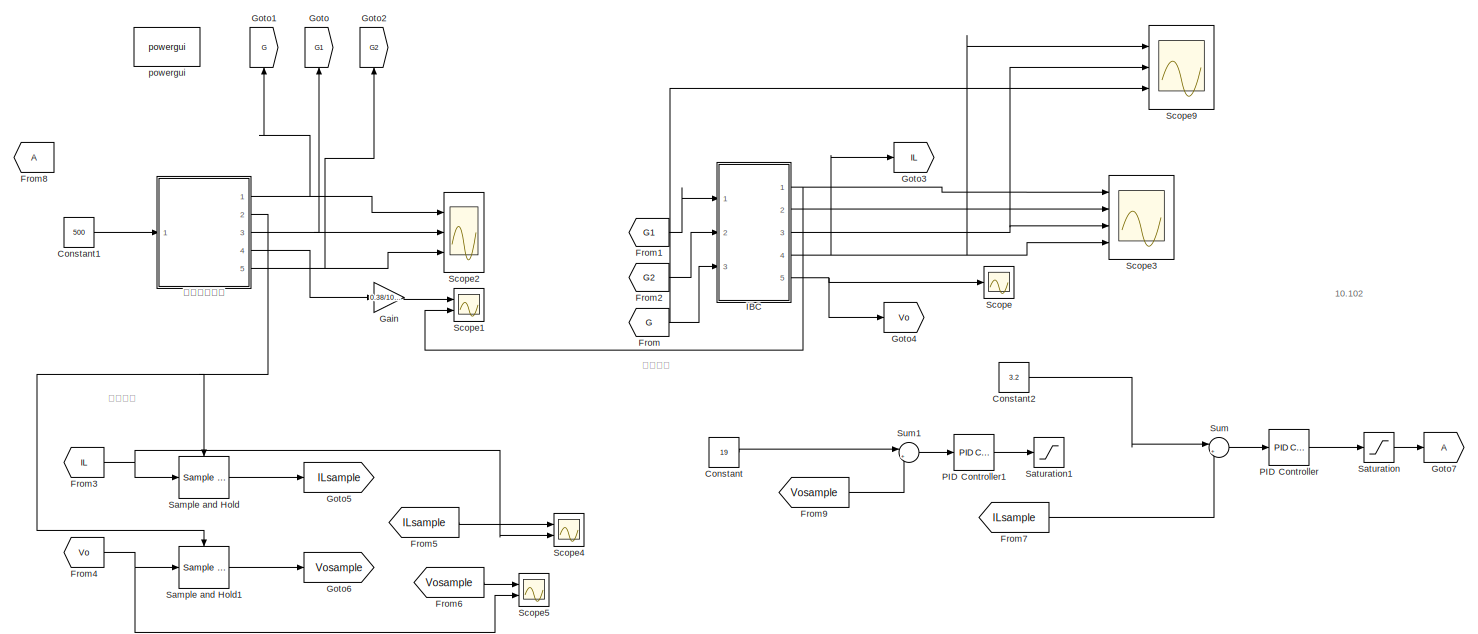
[diagram: root canvas - part 1/3, top center region]
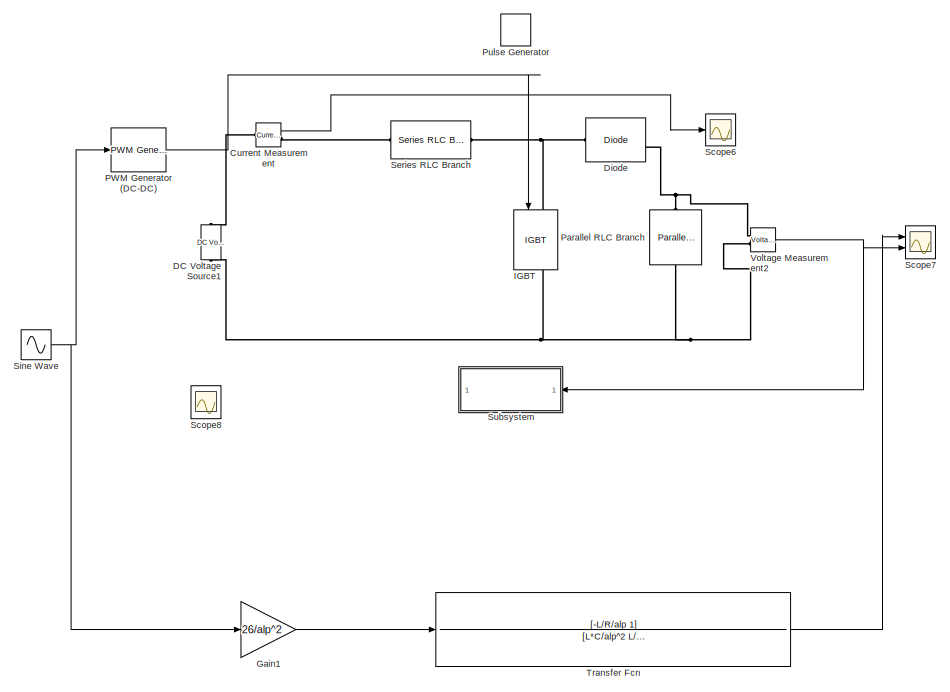
[diagram: root canvas - part 2/3, bottom left region]
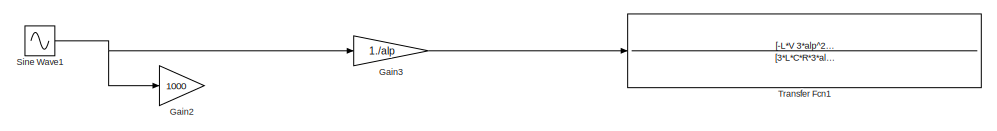
[diagram: root canvas - part 3/3, bottom right region]
MODEL slx_bc60dcd31ce7
KIND model
CONFIG AbsTol = auto
CONFIG EnableMultiTasking = off
CONFIG FixedStep = auto
CONFIG InitFcn = R=10;\nC=80e-6;\nL=2000e-6;\nalp=1-0.5;\nV=26;
CONFIG MaxStep = auto
CONFIG MinStep = auto
CONFIG RelTol = 1e-3
CONFIG SampleTimeConstraint = Unconstrained
CONFIG SolverName = VariableStepAuto
CONFIG StartTime = 0.0
CONFIG StopTime = 0.01
BLOCK [Constant] Constant
  Value = 19
BLOCK [Constant] Constant1
  Value = 500
BLOCK [Constant] Constant2
  Value = 3.2
BLOCK [Reference] Current Measurement  REF=spsCurrentMeasurementLib/Current Measurement
  Commented = on
  Ports = [0, 1, 0, 0, 0, 1, 1]
  SourceBlock = spsCurrentMeasurementLib/Current Measurement
  SourceProductBaseCode = PS
  SourceType = Current Measurement
  UserDataPersistent = on
BLOCK [Reference] DC Voltage Source1  REF=spsDCVoltageSourceLib/DC Voltage Source
  Commented = on
  NameLocation = right
  Ports = [0, 0, 0, 0, 0, 1, 1]
  SourceBlock = spsDCVoltageSourceLib/DC Voltage Source
  SourceProductBaseCode = PS
  SourceType = DC Voltage Source
BLOCK [Reference] Diode  REF=spsDiodeLib/Diode
  Commented = on
  Ports = [0, 1, 0, 0, 0, 1, 1]
  SourceBlock = spsDiodeLib/Diode
  SourceProductBaseCode = PS
  SourceType = Diode
BLOCK [From] From
  GotoTag = G
BLOCK [From] From1
  GotoTag = G1
BLOCK [From] From2
  GotoTag = G2
BLOCK [From] From3
  GotoTag = IL
BLOCK [From] From4
  GotoTag = Vo
BLOCK [From] From5
  GotoTag = ILsample
BLOCK [From] From6
  GotoTag = Vosample
BLOCK [From] From7
  GotoTag = ILsample
BLOCK [From] From8
BLOCK [From] From9
  GotoTag = Vosample
BLOCK [Gain] Gain
  Gain = 0.38/1000
BLOCK [Gain] Gain1
  Commented = on
  Gain = 26/alp^2
BLOCK [Gain] Gain2
  Commented = on
  Gain = 1000
BLOCK [Gain] Gain3
  Commented = on
  Gain = 1./alp
BLOCK [Goto] Goto
  GotoTag = G1
  NameLocation = right
BLOCK [Goto] Goto1
  GotoTag = G
  NameLocation = right
BLOCK [Goto] Goto2
  GotoTag = G2
  NameLocation = right
BLOCK [Goto] Goto3
  GotoTag = IL
BLOCK [Goto] Goto4
  GotoTag = Vo
BLOCK [Goto] Goto5
  GotoTag = ILsample
BLOCK [Goto] Goto6
  GotoTag = Vosample
BLOCK [Goto] Goto7
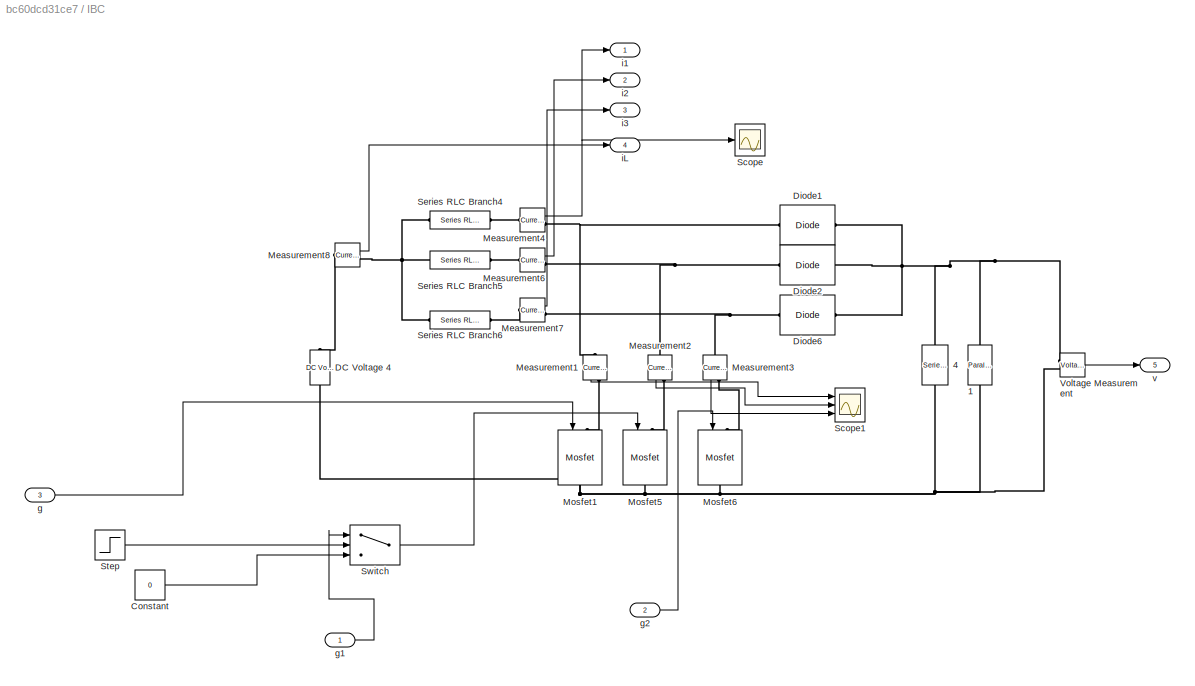
BLOCK [SubSystem] IBC
  Ports = [3, 5]
  RequestExecContextInheritance = off
BLOCK [Reference] IBC/    4  REF=spsSeriesRLCBranchLib/Series RLC Branch
  NameLocation = left
  Ports = [0, 0, 0, 0, 0, 1, 1]
  SourceBlock = spsSeriesRLCBranchLib/Series RLC Branch
  SourceProductBaseCode = PS
  SourceType = Series RLC Branch
BLOCK [Reference] IBC/  1  REF=spsParallelRLCBranchLib/Parallel RLC Branch
  AttributesFormatString = \n
  NameLocation = left
  Ports = [0, 0, 0, 0, 0, 1, 1]
  SourceBlock = spsParallelRLCBranchLib/Parallel RLC Branch
  SourceProductBaseCode = PS
  SourceType = Parallel RLC Branch
BLOCK [Reference] IBC/ Measurement1  REF=spsCurrentMeasurementLib/Current Measurement
  NameLocation = left
  Ports = [0, 1, 0, 0, 0, 1, 1]
  SourceBlock = spsCurrentMeasurementLib/Current Measurement
  SourceProductBaseCode = PS
  SourceType = Current Measurement
BLOCK [Reference] IBC/ Measurement2  REF=spsCurrentMeasurementLib/Current Measurement
  NameLocation = left
  Ports = [0, 1, 0, 0, 0, 1, 1]
  SourceBlock = spsCurrentMeasurementLib/Current Measurement
  SourceProductBaseCode = PS
  SourceType = Current Measurement
BLOCK [Reference] IBC/ Measurement3  REF=spsCurrentMeasurementLib/Current Measurement
  NameLocation = left
  Ports = [0, 1, 0, 0, 0, 1, 1]
  SourceBlock = spsCurrentMeasurementLib/Current Measurement
  SourceProductBaseCode = PS
  SourceType = Current Measurement
BLOCK [Reference] IBC/ Measurement4  REF=spsCurrentMeasurementLib/Current Measurement
  Ports = [0, 1, 0, 0, 0, 1, 1]
  SourceBlock = spsCurrentMeasurementLib/Current Measurement
  SourceProductBaseCode = PS
  SourceType = Current Measurement
BLOCK [Reference] IBC/ Measurement6  REF=spsCurrentMeasurementLib/Current Measurement
  Ports = [0, 1, 0, 0, 0, 1, 1]
  SourceBlock = spsCurrentMeasurementLib/Current Measurement
  SourceProductBaseCode = PS
  SourceType = Current Measurement
BLOCK [Reference] IBC/ Measurement7  REF=spsCurrentMeasurementLib/Current Measurement
  Ports = [0, 1, 0, 0, 0, 1, 1]
  SourceBlock = spsCurrentMeasurementLib/Current Measurement
  SourceProductBaseCode = PS
  SourceType = Current Measurement
BLOCK [Reference] IBC/ Measurement8  REF=spsCurrentMeasurementLib/Current Measurement
  Ports = [0, 1, 0, 0, 0, 1, 1]
  SourceBlock = spsCurrentMeasurementLib/Current Measurement
  SourceProductBaseCode = PS
  SourceType = Current Measurement
BLOCK [Constant] IBC/Constant
  Value = 0
BLOCK [Reference] IBC/DC Voltage 4  REF=spsDCVoltageSourceLib/DC Voltage Source
  NameLocation = right
  Ports = [0, 0, 0, 0, 0, 1, 1]
  SourceBlock = spsDCVoltageSourceLib/DC Voltage Source
  SourceProductBaseCode = PS
  SourceType = DC Voltage Source
BLOCK [Reference] IBC/Diode1  REF=spsDiodeLib/Diode
  Ports = [0, 0, 0, 0, 0, 1, 1]
  SourceBlock = spsDiodeLib/Diode
  SourceProductBaseCode = PS
  SourceType = Diode
BLOCK [Reference] IBC/Diode2  REF=spsDiodeLib/Diode
  Ports = [0, 0, 0, 0, 0, 1, 1]
  SourceBlock = spsDiodeLib/Diode
  SourceProductBaseCode = PS
  SourceType = Diode
BLOCK [Reference] IBC/Diode6  REF=spsDiodeLib/Diode
  Ports = [0, 0, 0, 0, 0, 1, 1]
  SourceBlock = spsDiodeLib/Diode
  SourceProductBaseCode = PS
  SourceType = Diode
BLOCK [Reference] IBC/Mosfet1  REF=spsMosfetLib/Mosfet
  NameLocation = left
  Ports = [1, 0, 0, 0, 0, 1, 1]
  SourceBlock = spsMosfetLib/Mosfet
  SourceProductBaseCode = PS
  SourceType = Mosfet
BLOCK [Reference] IBC/Mosfet5  REF=spsMosfetLib/Mosfet
  NameLocation = left
  Ports = [1, 0, 0, 0, 0, 1, 1]
  SourceBlock = spsMosfetLib/Mosfet
  SourceProductBaseCode = PS
  SourceType = Mosfet
BLOCK [Reference] IBC/Mosfet6  REF=spsMosfetLib/Mosfet
  NameLocation = left
  Ports = [1, 0, 0, 0, 0, 1, 1]
  SourceBlock = spsMosfetLib/Mosfet
  SourceProductBaseCode = PS
  SourceType = Mosfet
BLOCK [Scope] IBC/Scope
  Floating = off
  NumInputPorts = 1
  Ports = [1]
  ScopeSpecificationString = Simulink.scopes.TimeScopeBlockCfg('CurrentConfiguration', extmgr.ConfigurationSet(extmgr.Configuration('Core','General UI',true),extmgr.Configuration('Core','Source UI',true),extmgr.Configuration('Sources','WiredSimulink',true,'DataLoggingVariableName','ScopeData1'),extmgr.Configuration('Visuals','Time Domain',true,'SerializedDisplays',{struct('MinYLimReal','-0.04996','MaxYLimReal','0.45188','YLab...<+1372ch>
BLOCK [Scope] IBC/Scope1
  Floating = off
  NumInputPorts = 3
  Ports = [3]
  ScopeSpecificationString = Simulink.scopes.TimeScopeBlockCfg('CurrentConfiguration', extmgr.ConfigurationSet(extmgr.Configuration('Core','General UI',true),extmgr.Configuration('Core','Source UI',true),extmgr.Configuration('Sources','WiredSimulink',true,'DataLoggingVariableName','ScopeData1'),extmgr.Configuration('Visuals','Time Domain',true,'SerializedDisplays',{struct('MinYLimReal','-0.05517','MaxYLimReal','0.4966','YLabe...<+2873ch>
BLOCK [Reference] IBC/Series RLC Branch4  REF=spsSeriesRLCBranchLib/Series RLC Branch
  Ports = [0, 0, 0, 0, 0, 1, 1]
  SourceBlock = spsSeriesRLCBranchLib/Series RLC Branch
  SourceProductBaseCode = PS
  SourceType = Series RLC Branch
BLOCK [Reference] IBC/Series RLC Branch5  REF=spsSeriesRLCBranchLib/Series RLC Branch
  Ports = [0, 0, 0, 0, 0, 1, 1]
  SourceBlock = spsSeriesRLCBranchLib/Series RLC Branch
  SourceProductBaseCode = PS
  SourceType = Series RLC Branch
BLOCK [Reference] IBC/Series RLC Branch6  REF=spsSeriesRLCBranchLib/Series RLC Branch
  Ports = [0, 0, 0, 0, 0, 1, 1]
  SourceBlock = spsSeriesRLCBranchLib/Series RLC Branch
  SourceProductBaseCode = PS
  SourceType = Series RLC Branch
BLOCK [Step] IBC/Step
  After = 0
  Before = 1
  SampleTime = 0
  Time = 0.008
BLOCK [Switch] IBC/Switch
  Criteria = u2 > Threshold
  InputSameDT = off
  SaturateOnIntegerOverflow = off
  Threshold = 0.5
BLOCK [Reference] IBC/Voltage Measurement  REF=spsVoltageMeasurementLib/Voltage Measurement
  Ports = [0, 1, 0, 0, 0, 2]
  SourceBlock = spsVoltageMeasurementLib/Voltage Measurement
  SourceProductBaseCode = PS
  SourceType = Voltage Measurement
  UserDataPersistent = on
BLOCK [Inport] IBC/g
  Port = 3
BLOCK [Inport] IBC/g1
BLOCK [Inport] IBC/g2
  Port = 2
BLOCK [Outport] IBC/i1
BLOCK [Outport] IBC/i2
  Port = 2
BLOCK [Outport] IBC/i3
  Port = 3
BLOCK [Outport] IBC/iL
  Port = 4
BLOCK [Outport] IBC/v
  Port = 5
BLOCK [Reference] IGBT  REF=spsIGBTLib/IGBT
  Commented = on
  NameLocation = left
  Ports = [1, 1, 0, 0, 0, 1, 1]
  SourceBlock = spsIGBTLib/IGBT
  SourceProductBaseCode = PS
  SourceType = IGBT
BLOCK [Reference] PID Controller  REF=pid_lib/PID Controller
  Ports = [1, 1]
  SourceBlock = pid_lib/PID Controller
  SourceProductBaseCode = SL
  SourceType = PID 1dof
BLOCK [Reference] PID Controller1  REF=pid_lib/PID Controller
  Ports = [1, 1]
  SourceBlock = pid_lib/PID Controller
  SourceProductBaseCode = SL
  SourceType = PID 1dof
BLOCK [Reference] PWM Generator (DC-DC)  REF=spsPWMGeneratorDCDCLib/PWM Generator
(DC-DC)
  Commented = on
  Ports = [1, 1]
  SourceBlock = spsPWMGeneratorDCDCLib/PWM Generator\n(DC-DC)
  SourceProductBaseCode = PS
  SourceType = PWM Generator (DC-DC)
BLOCK [Reference] Parallel RLC Branch  REF=spsParallelRLCBranchLib/Parallel RLC Branch
  AttributesFormatString = \n
  Commented = on
  NameLocation = left
  Ports = [0, 0, 0, 0, 0, 1, 1]
  SourceBlock = spsParallelRLCBranchLib/Parallel RLC Branch
  SourceProductBaseCode = PS
  SourceType = Parallel RLC Branch
BLOCK [DiscretePulseGenerator] Pulse Generator
  Amplitude = 10
  Commented = on
  Period = 1./(100e3)
  Ports = [0, 1]
  PulseType = Time based
  PulseWidth = 50
BLOCK [Reference] Sample and Hold  REF=dspsigops/Sample
and Hold
  Ports = [1, 1, 0, 1]
  SourceBlock = dspsigops/Sample\nand Hold
  SourceProductBaseCode = DS
  SourceType = Sample and Hold
BLOCK [Reference] Sample and Hold1  REF=dspsigops/Sample
and Hold
  Ports = [1, 1, 0, 1]
  SourceBlock = dspsigops/Sample\nand Hold
  SourceProductBaseCode = DS
  SourceType = Sample and Hold
BLOCK [Saturate] Saturation
  LowerLimit = 100
  UpperLimit = 900
BLOCK [Saturate] Saturation1
  LowerLimit = 0
  UpperLimit = 5
BLOCK [Scope] Scope
  Floating = off
  NumInputPorts = 1
  Ports = [1]
  ScopeSpecificationString = Simulink.scopes.TimeScopeBlockCfg('CurrentConfiguration', extmgr.ConfigurationSet(extmgr.Configuration('Core','General UI',true),extmgr.Configuration('Core','Source UI',true),extmgr.Configuration('Sources','WiredSimulink',true,'DataLoggingVariableName','ScopeData1'),extmgr.Configuration('Visuals','Time Domain',true,'SerializedDisplays',{struct('MinYLimReal','-1.84514','MaxYLimReal','16.60629','YLa...<+1437ch>
BLOCK [Scope] Scope1
  Floating = off
  NumInputPorts = 2
  Ports = [2]
  ScopeSpecificationString = Simulink.scopes.TimeScopeBlockCfg('CurrentConfiguration', extmgr.ConfigurationSet(extmgr.Configuration('Core','General UI',true),extmgr.Configuration('Core','Source UI',true),extmgr.Configuration('Sources','WiredSimulink',true,'DataLoggingVariableName','ScopeData1'),extmgr.Configuration('Visuals','Time Domain',true,'SerializedDisplays',{struct('MinYLimReal','-0.04268','MaxYLimReal','0.3841','YLabe...<+1576ch>
BLOCK [Scope] Scope2
  Floating = off
  NumInputPorts = 3
  Ports = [3]
  ScopeSpecificationString = Simulink.scopes.TimeScopeBlockCfg('CurrentConfiguration', extmgr.ConfigurationSet(extmgr.Configuration('Core','General UI',true),extmgr.Configuration('Core','Source UI',true),extmgr.Configuration('Sources','WiredSimulink',true,'DataLoggingVariableName','ScopeData1'),extmgr.Configuration('Visuals','Time Domain',true,'SerializedDisplays',{struct('MinYLimReal','-0.125','MaxYLimReal','1.125','YLabelRe...<+3140ch>
BLOCK [Scope] Scope3
  Floating = off
  NumInputPorts = 4
  Ports = [4]
  ScopeSpecificationString = Simulink.scopes.TimeScopeBlockCfg('CurrentConfiguration', extmgr.ConfigurationSet(extmgr.Configuration('Core','General UI',true,'FigureColor',[1 1 1]),extmgr.Configuration('Core','Source UI',true),extmgr.Configuration('Sources','WiredSimulink',true,'DataLoggingVariableName','Io','DataLogging',true),extmgr.Configuration('Visuals','Time Domain',true,'TimeAxisLabels','All','SerializedDisplays',{struc...<+2351ch>
BLOCK [Scope] Scope4
  Floating = off
  NumInputPorts = 2
  Ports = [2]
  ScopeSpecificationString = Simulink.scopes.TimeScopeBlockCfg('CurrentConfiguration', extmgr.ConfigurationSet(extmgr.Configuration('Core','General UI',true),extmgr.Configuration('Core','Source UI',true),extmgr.Configuration('Sources','WiredSimulink',true,'DataLoggingVariableName','ScopeData2'),extmgr.Configuration('Visuals','Time Domain',true,'SerializedDisplays',{struct('MinYLimReal','-0.01019','MaxYLimReal','0.0917','YLabe...<+1495ch>
BLOCK [Scope] Scope5
  Floating = off
  NumInputPorts = 2
  Ports = [2]
  ScopeSpecificationString = Simulink.scopes.TimeScopeBlockCfg('CurrentConfiguration', extmgr.ConfigurationSet(extmgr.Configuration('Core','General UI',true),extmgr.Configuration('Core','Source UI',true),extmgr.Configuration('Sources','WiredSimulink',true,'DataLoggingVariableName','ScopeData3'),extmgr.Configuration('Visuals','Time Domain',true,'SerializedDisplays',{struct('MinYLimReal','-1.81226','MaxYLimReal','16.31034','YLa...<+1486ch>
BLOCK [Scope] Scope6
  Commented = on
  Floating = off
  NumInputPorts = 1
  Ports = [1]
  ScopeSpecificationString = Simulink.scopes.TimeScopeBlockCfg('CurrentConfiguration', extmgr.ConfigurationSet(extmgr.Configuration('Core','General UI',true),extmgr.Configuration('Core','Source UI',true),extmgr.Configuration('Sources','WiredSimulink',true,'DataLoggingVariableName','ScopeData1','DataLogging',true,'DataLoggingSaveFormat','StructureWithTime'),extmgr.Configuration('Visuals','Time Domain',true,'SerializedDisplays'...<+1543ch>
BLOCK [Scope] Scope7
  Commented = on
  Floating = off
  NumInputPorts = 2
  Ports = [2]
  ScopeSpecificationString = Simulink.scopes.TimeScopeBlockCfg('CurrentConfiguration', extmgr.ConfigurationSet(extmgr.Configuration('Core','General UI',true),extmgr.Configuration('Core','Source UI',true),extmgr.Configuration('Sources','WiredSimulink',true,'DataLoggingVariableName','ScopeData2','DataLogging',true,'DataLoggingSaveFormat','StructureWithTime'),extmgr.Configuration('Visuals','Time Domain',true,'SerializedDisplays'...<+1680ch>
BLOCK [Scope] Scope8
  Commented = on
  Floating = off
  NumInputPorts = 2
  Ports = [2]
  ScopeSpecificationString = Simulink.scopes.TimeScopeBlockCfg('CurrentConfiguration', extmgr.ConfigurationSet(extmgr.Configuration('Core','General UI',true),extmgr.Configuration('Core','Source UI',true),extmgr.Configuration('Sources','WiredSimulink',true,'DataLoggingVariableName','ScopeData3','DataLogging',true,'DataLoggingSaveFormat','StructureWithTime'),extmgr.Configuration('Visuals','Time Domain',true,'SerializedDisplays'...<+1616ch>
BLOCK [Scope] Scope9
  Floating = off
  NumInputPorts = 3
  Ports = [3]
  ScopeSpecificationString = Simulink.scopes.TimeScopeBlockCfg('CurrentConfiguration', extmgr.ConfigurationSet(extmgr.Configuration('Core','General UI',true,'FigureColor',[1 1 1]),extmgr.Configuration('Core','Source UI',true),extmgr.Configuration('Sources','WiredSimulink',true,'DataLoggingVariableName','ScopeData1','DataLogging',true),extmgr.Configuration('Visuals','Time Domain',true,'TimeAxisLabels','All','SerializedDisplays...<+3906ch>
BLOCK [Reference] Series RLC Branch  REF=spsSeriesRLCBranchLib/Series RLC Branch
  Commented = on
  Ports = [0, 0, 0, 0, 0, 1, 1]
  SourceBlock = spsSeriesRLCBranchLib/Series RLC Branch
  SourceProductBaseCode = PS
  SourceType = Series RLC Branch
BLOCK [Sin] Sine Wave
  Amplitude = 0.01
  Bias = 0.5
  Commented = on
  Frequency = 2*pi*5e3
  Ports = [0, 1]
  SampleTime = 0
BLOCK [Sin] Sine Wave1
  Amplitude = 0.01
  Bias = 0.5
  Commented = on
  Frequency = 2*pi*5e3
  Ports = [0, 1]
  SampleTime = 0
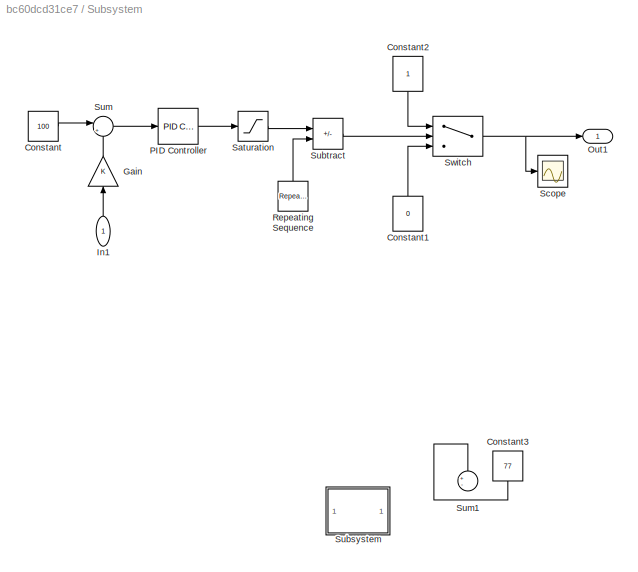
BLOCK [SubSystem] Subsystem
  Commented = on
  NameLocation = top
  Ports = [1, 1]
  RequestExecContextInheritance = off
BLOCK [Constant] Subsystem/Constant
  Value = 100
BLOCK [Constant] Subsystem/Constant1
  NameLocation = right
  Value = 0
BLOCK [Constant] Subsystem/Constant2
  NameLocation = left
BLOCK [Constant] Subsystem/Constant3
  NameLocation = left
  Value = 77
BLOCK [Gain] Subsystem/Gain
  NameLocation = right
BLOCK [Inport] Subsystem/In1
  NameLocation = right
BLOCK [Outport] Subsystem/Out1
BLOCK [Reference] Subsystem/PID Controller  REF=pid_lib/PID Controller
  Ports = [1, 1]
  SourceBlock = pid_lib/PID Controller
  SourceProductBaseCode = SL
  SourceType = PID 1dof
BLOCK [Reference] Subsystem/Repeating Sequence  REF=simulink/Sources/Repeating
Sequence
  NameLocation = right
  Ports = [0, 1]
  SourceBlock = simulink/Sources/Repeating\nSequence
  SourceProductBaseCode = SL
  SourceType = Repeating table
BLOCK [Saturate] Subsystem/Saturation
  LowerLimit = -1
  OutMax = [1]
  OutMin = [-1]
  UpperLimit = 1
BLOCK [Scope] Subsystem/Scope
  Floating = off
  NumInputPorts = 1
  Ports = [1]
  ScopeSpecificationString = Simulink.scopes.TimeScopeBlockCfg('CurrentConfiguration', extmgr.ConfigurationSet(extmgr.Configuration('Core','General UI',true),extmgr.Configuration('Core','Source UI',true),extmgr.Configuration('Sources','WiredSimulink',true,'DataLoggingVariableName','ScopeData2','DataLoggingLimitDataPoints',true,'DataLoggingSaveFormat','Array','DataLoggingDecimation','1','DataLoggingDecimateData',true),extmgr.C...<+1549ch>
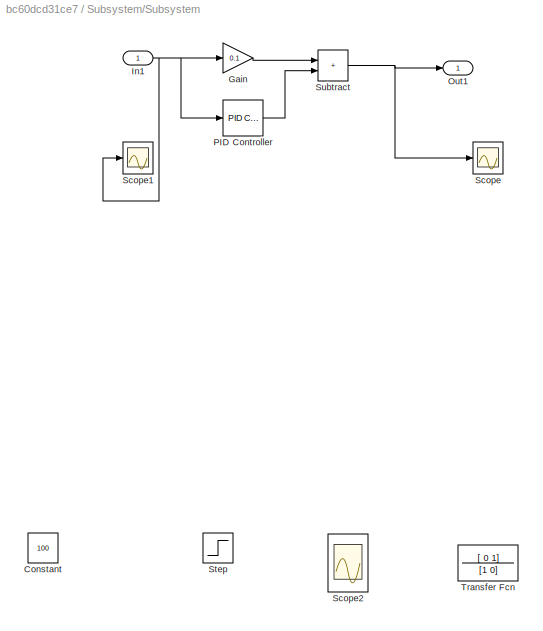
BLOCK [SubSystem] Subsystem/Subsystem
  Ports = [1, 1]
  RequestExecContextInheritance = off
BLOCK [Constant] Subsystem/Subsystem/Constant
  Value = 100
BLOCK [Gain] Subsystem/Subsystem/Gain
  Gain = 0.1
BLOCK [Inport] Subsystem/Subsystem/In1
BLOCK [Outport] Subsystem/Subsystem/Out1
BLOCK [Reference] Subsystem/Subsystem/PID Controller  REF=pid_lib/PID Controller
  Ports = [1, 1]
  SourceBlock = pid_lib/PID Controller
  SourceProductBaseCode = SL
  SourceType = PID 1dof
BLOCK [Scope] Subsystem/Subsystem/Scope
  Floating = off
  NumInputPorts = 1
  Ports = [1]
  ScopeSpecificationString = Simulink.scopes.TimeScopeBlockCfg('CurrentConfiguration', extmgr.ConfigurationSet(extmgr.Configuration('Core','General UI',true),extmgr.Configuration('Core','Source UI',true),extmgr.Configuration('Sources','WiredSimulink',true,'DataLoggingVariableName','ScopeData1'),extmgr.Configuration('Visuals','Time Domain',true,'SerializedDisplays',{struct('MinYLimReal','-14.62559','MaxYLimReal','-0.64296','YL...<+1425ch>
BLOCK [Scope] Subsystem/Subsystem/Scope1
  Floating = off
  NumInputPorts = 1
  Ports = [1]
  ScopeSpecificationString = Simulink.scopes.TimeScopeBlockCfg('CurrentConfiguration', extmgr.ConfigurationSet(extmgr.Configuration('Core','General UI',true),extmgr.Configuration('Core','Source UI',true),extmgr.Configuration('Sources','WiredSimulink',true,'DataLoggingVariableName','ScopeData3'),extmgr.Configuration('Visuals','Time Domain',true,'SerializedDisplays',{struct('MinYLimReal','-116.29738','MaxYLimReal','46.6764','YL...<+1424ch>
BLOCK [Scope] Subsystem/Subsystem/Scope2
  Floating = off
  NumInputPorts = 1
  Ports = [1]
  ScopeSpecificationString = Simulink.scopes.TimeScopeBlockCfg('CurrentConfiguration', extmgr.ConfigurationSet(extmgr.Configuration('Core','General UI',true),extmgr.Configuration('Core','Source UI',true),extmgr.Configuration('Sources','WiredSimulink',true,'DataLoggingVariableName','ScopeData4'),extmgr.Configuration('Visuals','Time Domain',true,'SerializedDisplays',{struct('MinYLimReal','-4.10023','MaxYLimReal','36.90209','YLa...<+1443ch>
BLOCK [Step] Subsystem/Subsystem/Step
  After = 100
  SampleTime = 0
  Time = 0.001
BLOCK [Sum] Subsystem/Subsystem/Subtract
  IconShape = rectangular
  Ports = [2, 1]
BLOCK [TransferFcn] Subsystem/Subsystem/Transfer Fcn
  Denominator = [1 0]
  Numerator = [ 0  1]
BLOCK [Sum] Subsystem/Subtract
  IconShape = rectangular
  Inputs = +-
  Ports = [2, 1]
BLOCK [Sum] Subsystem/Sum
  Inputs = |+-
  Ports = [2, 1]
BLOCK [Sum] Subsystem/Sum1
  Inputs = +-
  Ports = [2, 1]
BLOCK [Switch] Subsystem/Switch
  Criteria = u2 > Threshold
  InputSameDT = off
  SaturateOnIntegerOverflow = off
BLOCK [Sum] Sum
  Inputs = |+-
  Ports = [2, 1]
BLOCK [Sum] Sum1
  Inputs = |+-
  Ports = [2, 1]
BLOCK [TransferFcn] Transfer Fcn
  Commented = on
  Denominator = [L*C/alp^2 L/R/alp^2 1]
  Numerator = [-L/R/alp 1]
BLOCK [TransferFcn] Transfer Fcn1
  Commented = on
  Denominator = [3*L*C*R*3*alp 3*alp*L 9*alp^3*R]
  Numerator = [-L*V 3*alp^2*R*V]
BLOCK [Reference] Voltage Measurement2  REF=spsVoltageMeasurementLib/Voltage Measurement
  Commented = on
  Ports = [0, 1, 0, 0, 0, 2]
  SourceBlock = spsVoltageMeasurementLib/Voltage Measurement
  SourceProductBaseCode = PS
  SourceType = Voltage Measurement
  UserDataPersistent = on
BLOCK [Reference] powergui  REF=spspowerguiLib/powergui
  Ports = []
  Priority = 1
  SourceBlock = spspowerguiLib/powergui
  SourceProductBaseCode = PS
  SourceType = PSB option menu block
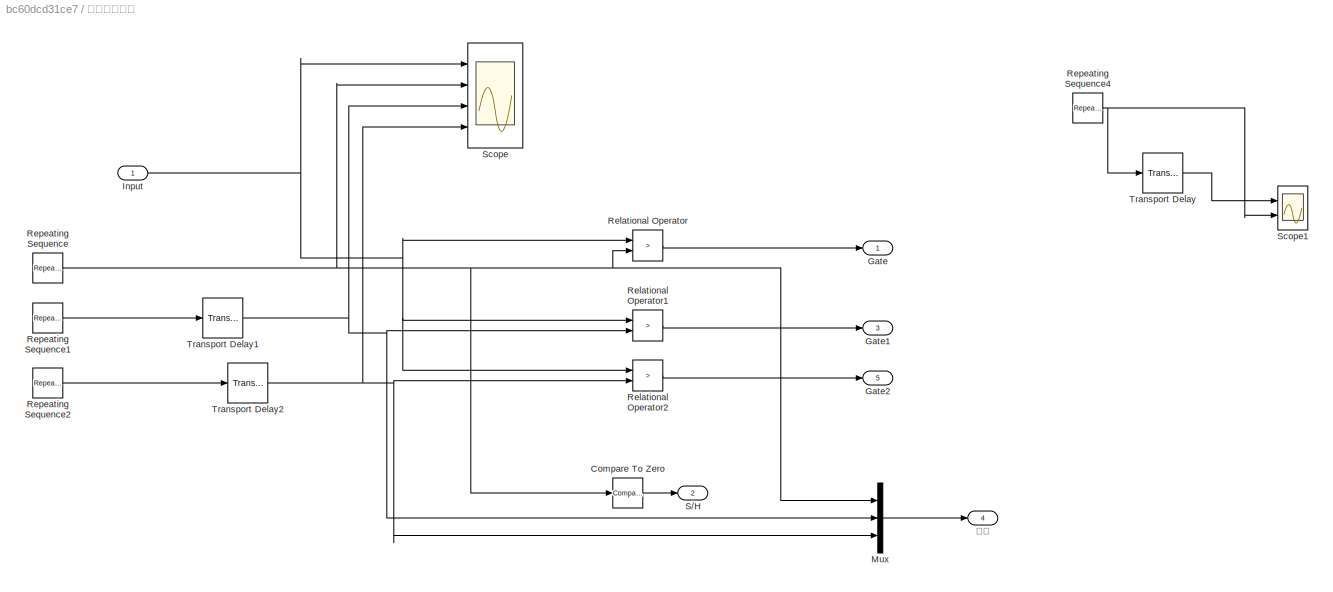
BLOCK [SubSystem] 命令信号生产
  Ports = [1, 5]
  RequestExecContextInheritance = off
BLOCK [Reference] 命令信号生产/Compare To Zero  REF=simulink/Logic and Bit
Operations/Compare
To Zero
  Ports = [1, 1]
  SourceBlock = simulink/Logic and Bit\nOperations/Compare\nTo Zero
  SourceProductBaseCode = SL
  SourceType = Compare To Zero
BLOCK [Outport] 命令信号生产/Gate
BLOCK [Outport] 命令信号生产/Gate1
  Port = 3
BLOCK [Outport] 命令信号生产/Gate2
  Port = 5
BLOCK [Inport] 命令信号生产/Input
BLOCK [Mux] 命令信号生产/Mux
  DisplayOption = bar
  Inputs = 3
  Ports = [3, 1]
BLOCK [RelationalOperator] 命令信号生产/Relational Operator
  InputSameDT = off
  Operator = >
  OutDataTypeStr = boolean
  Ports = [2, 1]
  RndMeth = Simplest
BLOCK [RelationalOperator] 命令信号生产/Relational Operator1
  InputSameDT = off
  Operator = >
  OutDataTypeStr = boolean
  Ports = [2, 1]
  RndMeth = Simplest
BLOCK [RelationalOperator] 命令信号生产/Relational Operator2
  InputSameDT = off
  Operator = >
  OutDataTypeStr = boolean
  Ports = [2, 1]
  RndMeth = Simplest
BLOCK [Reference] 命令信号生产/Repeating Sequence  REF=simulink/Sources/Repeating
Sequence
  Ports = [0, 1]
  SourceBlock = simulink/Sources/Repeating\nSequence
  SourceProductBaseCode = SL
  SourceType = Repeating table
BLOCK [Reference] 命令信号生产/Repeating Sequence1  REF=simulink/Sources/Repeating
Sequence
  Ports = [0, 1]
  SourceBlock = simulink/Sources/Repeating\nSequence
  SourceProductBaseCode = SL
  SourceType = Repeating table
BLOCK [Reference] 命令信号生产/Repeating Sequence2  REF=simulink/Sources/Repeating
Sequence
  Ports = [0, 1]
  SourceBlock = simulink/Sources/Repeating\nSequence
  SourceProductBaseCode = SL
  SourceType = Repeating table
BLOCK [Reference] 命令信号生产/Repeating Sequence4  REF=simulink/Sources/Repeating
Sequence
  Ports = [0, 1]
  SourceBlock = simulink/Sources/Repeating\nSequence
  SourceProductBaseCode = SL
  SourceType = Repeating table
BLOCK [Outport] 命令信号生产/S//H
  Port = 2
BLOCK [Scope] 命令信号生产/Scope
  Floating = off
  NumInputPorts = 4
  Ports = [4]
  ScopeSpecificationString = Simulink.scopes.TimeScopeBlockCfg('CurrentConfiguration', extmgr.ConfigurationSet(extmgr.Configuration('Core','General UI',true),extmgr.Configuration('Core','Source UI',true),extmgr.Configuration('Sources','WiredSimulink',true,'DataLoggingVariableName','ScopeData2'),extmgr.Configuration('Visuals','Time Domain',true,'PlotType','Line','SerializedDisplays',{struct('MinYLimReal','-125.00000','MaxYLimR...<+1674ch>
BLOCK [Scope] 命令信号生产/Scope1
  Floating = off
  NumInputPorts = 2
  Ports = [2]
  ScopeSpecificationString = Simulink.scopes.TimeScopeBlockCfg('CurrentConfiguration', extmgr.ConfigurationSet(extmgr.Configuration('Core','General UI',true),extmgr.Configuration('Core','Source UI',true),extmgr.Configuration('Sources','WiredSimulink',true,'DataLoggingVariableName','ScopeData3'),extmgr.Configuration('Visuals','Time Domain',true,'SerializedDisplays',{struct('MinYLimReal','-125.00000','MaxYLimReal','1125.00000',...<+1897ch>
BLOCK [TransportDelay] 命令信号生产/Transport Delay
  DelayTime = 1./100e3./3
  Ports = [1, 1]
BLOCK [TransportDelay] 命令信号生产/Transport Delay1
  DelayTime = 1./Fs./3
  Ports = [1, 1]
BLOCK [TransportDelay] 命令信号生产/Transport Delay2
  DelayTime = 2./Fs./3
  Ports = [1, 1]
BLOCK [Outport] 命令信号生产/载波
  Port = 4
ANNOTATION (root): 10.102
ANNOTATION (root): 控制结构
ANNOTATION (root): 采样结构
LINE Constant1:1 -> 命令信号生产:1
LINE Constant2:1 -> Sum:1
LINE Constant:1 -> Sum1:1
LINE Current Measurement:1 -> Scope6:1
LINE From1:1 -> IBC:1
LINE From2:1 -> IBC:2
NET From3:1 -> Sample and Hold:1, Scope4:2
NET From4:1 -> Sample and Hold1:1, Scope5:2
LINE From5:1 -> Scope4:1
LINE From6:1 -> Scope5:1
LINE From7:1 -> Sum:2
LINE From9:1 -> Sum1:2
NET From:1 -> IBC:3, Scope9:3
LINE Gain1:1 -> Transfer Fcn:1
LINE Gain3:1 -> Transfer Fcn1:1
LINE Gain:1 -> Scope1:1
LINE IBC/ Measurement1:1 -> IBC/Scope1:1
LINE IBC/ Measurement2:1 -> IBC/Scope1:2
LINE IBC/ Measurement3:1 -> IBC/Scope1:3
NET IBC/ Measurement4:1 -> IBC/Scope:1, IBC/i1:1
LINE IBC/ Measurement6:1 -> IBC/i2:1
LINE IBC/ Measurement7:1 -> IBC/i3:1
LINE IBC/ Measurement8:1 -> IBC/iL:1
LINE IBC/Constant:1 -> IBC/Switch:3
LINE IBC/Step:1 -> IBC/Switch:2
LINE IBC/Switch:1 -> IBC/Mosfet5:1
LINE IBC/Voltage Measurement:1 -> IBC/v:1
LINE IBC/g1:1 -> IBC/Switch:1
LINE IBC/g2:1 -> IBC/Mosfet6:1
LINE IBC/g:1 -> IBC/Mosfet1:1
NET IBC:1 -> Scope1:2, Scope3:1
LINE IBC:2 -> Scope3:2
NET IBC:3 -> Scope3:3, Scope9:2
NET IBC:4 -> Goto3:1, Scope3:4, Scope9:1
NET IBC:5 -> Goto4:1, Scope:1
LINE PID Controller1:1 -> Saturation1:1
LINE PID Controller:1 -> Saturation:1
LINE PWM Generator (DC-DC):1 -> IGBT:1
LINE Sample and Hold1:1 -> Goto6:1
LINE Sample and Hold:1 -> Goto5:1
LINE Saturation:1 -> Goto7:1
NET Sine Wave1:1 -> Gain2:1, Gain3:1
NET Sine Wave:1 -> Gain1:1, PWM Generator (DC-DC):1
LINE Subsystem/Constant1:1 -> Subsystem/Switch:3
LINE Subsystem/Constant2:1 -> Subsystem/Switch:1
LINE Subsystem/Constant3:1 -> Subsystem/Sum1:1
LINE Subsystem/Constant:1 -> Subsystem/Sum:1
LINE Subsystem/Gain:1 -> Subsystem/Sum:2
LINE Subsystem/In1:1 -> Subsystem/Gain:1
LINE Subsystem/PID Controller:1 -> Subsystem/Saturation:1
LINE Subsystem/Repeating Sequence:1 -> Subsystem/Subtract:2
LINE Subsystem/Saturation:1 -> Subsystem/Subtract:1
LINE Subsystem/Subsystem/Gain:1 -> Subsystem/Subsystem/Subtract:1
NET Subsystem/Subsystem/In1:1 -> Subsystem/Subsystem/Gain:1, Subsystem/Subsystem/PID Controller:1, Subsystem/Subsystem/Scope1:1
LINE Subsystem/Subsystem/PID Controller:1 -> Subsystem/Subsystem/Subtract:2
NET Subsystem/Subsystem/Subtract:1 -> Subsystem/Subsystem/Out1:1, Subsystem/Subsystem/Scope:1
LINE Subsystem/Subtract:1 -> Subsystem/Switch:2
LINE Subsystem/Sum:1 -> Subsystem/PID Controller:1
NET Subsystem/Switch:1 -> Subsystem/Out1:1, Subsystem/Scope:1
LINE Sum1:1 -> PID Controller1:1
LINE Sum:1 -> PID Controller:1
LINE Transfer Fcn:1 -> Scope7:1
NET Voltage Measurement2:1 -> Scope7:2, Subsystem:1
LINE 命令信号生产/Compare To Zero:1 -> 命令信号生产/S//H:1
NET 命令信号生产/Input:1 -> 命令信号生产/Relational Operator1:1, 命令信号生产/Relational Operator2:1, 命令信号生产/Relational Operator:1, 命令信号生产/Scope:1
LINE 命令信号生产/Mux:1 -> 命令信号生产/载波:1
LINE 命令信号生产/Relational Operator1:1 -> 命令信号生产/Gate1:1
LINE 命令信号生产/Relational Operator2:1 -> 命令信号生产/Gate2:1
LINE 命令信号生产/Relational Operator:1 -> 命令信号生产/Gate:1
LINE 命令信号生产/Repeating Sequence1:1 -> 命令信号生产/Transport Delay1:1
LINE 命令信号生产/Repeating Sequence2:1 -> 命令信号生产/Transport Delay2:1
NET 命令信号生产/Repeating Sequence4:1 -> 命令信号生产/Scope1:2, 命令信号生产/Transport Delay:1
NET 命令信号生产/Repeating Sequence:1 -> 命令信号生产/Compare To Zero:1, 命令信号生产/Mux:1, 命令信号生产/Relational Operator:2, 命令信号生产/Scope:2
NET 命令信号生产/Transport Delay1:1 -> 命令信号生产/Mux:2, 命令信号生产/Relational Operator1:2, 命令信号生产/Scope:3
NET 命令信号生产/Transport Delay2:1 -> 命令信号生产/Mux:3, 命令信号生产/Relational Operator2:2, 命令信号生产/Scope:4
LINE 命令信号生产/Transport Delay:1 -> 命令信号生产/Scope1:1
NET 命令信号生产:1 -> Goto1:1, Scope2:1
NET 命令信号生产:2 -> Sample and Hold1:trigger, Sample and Hold:trigger
NET 命令信号生产:3 -> Goto:1, Scope2:2
LINE 命令信号生产:4 -> Gain:1
NET 命令信号生产:5 -> Goto2:1, Scope2:3
PLINE Current Measurement:LConn1 -- DC Voltage Source1:RConn1
PLINE Current Measurement:RConn1 -- Series RLC Branch:LConn1
PNET net1: DC Voltage Source1:LConn1 -- IGBT:RConn1 -- Parallel RLC Branch:RConn1 -- Voltage Measurement2:LConn2
PNET net2: Diode:LConn1 -- IGBT:LConn1 -- Series RLC Branch:RConn1
PNET net3: Diode:RConn1 -- Parallel RLC Branch:LConn1 -- Voltage Measurement2:LConn1
PNET net4: IBC/    4:LConn1 -- IBC/  1:LConn1 -- IBC/Diode1:RConn1 -- IBC/Diode2:RConn1 -- IBC/Diode6:RConn1 -- IBC/Voltage Measurement:LConn1
PNET net5: IBC/    4:RConn1 -- IBC/  1:RConn1 -- IBC/DC Voltage 4:LConn1 -- IBC/Mosfet1:RConn1 -- IBC/Mosfet5:RConn1 -- IBC/Mosfet6:RConn1 -- IBC/Voltage Measurement:LConn2
PNET net6: IBC/ Measurement1:LConn1 -- IBC/ Measurement4:RConn1 -- IBC/Diode1:LConn1
PLINE IBC/ Measurement1:RConn1 -- IBC/Mosfet1:LConn1
PNET net7: IBC/ Measurement2:LConn1 -- IBC/ Measurement6:RConn1 -- IBC/Diode2:LConn1
PLINE IBC/ Measurement2:RConn1 -- IBC/Mosfet5:LConn1
PNET net8: IBC/ Measurement3:LConn1 -- IBC/ Measurement7:RConn1 -- IBC/Diode6:LConn1
PLINE IBC/ Measurement3:RConn1 -- IBC/Mosfet6:LConn1
PLINE IBC/ Measurement4:LConn1 -- IBC/Series RLC Branch4:RConn1
PLINE IBC/ Measurement6:LConn1 -- IBC/Series RLC Branch5:RConn1
PLINE IBC/ Measurement7:LConn1 -- IBC/Series RLC Branch6:RConn1
PLINE IBC/ Measurement8:LConn1 -- IBC/DC Voltage 4:RConn1
PNET net9: IBC/ Measurement8:RConn1 -- IBC/Series RLC Branch4:LConn1 -- IBC/Series RLC Branch5:LConn1 -- IBC/Series RLC Branch6:LConn1
note: NET lines group one-source signal fan-out (src -> all destinations, sorted); 1:1 wires keep LINE; PNET lines group multi-terminal physical nets as a canonical sorted terminal list (undirected conserving connections); 2-terminal nets keep the pairwise PLINE form
